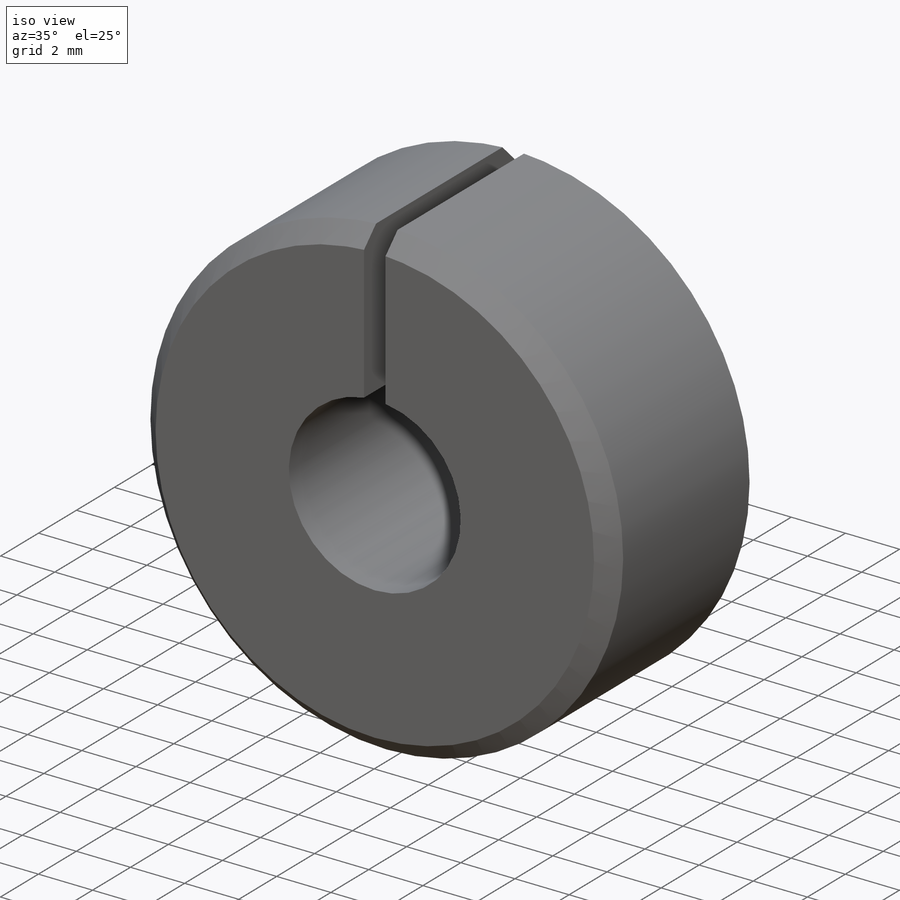
[diagram: iso view]
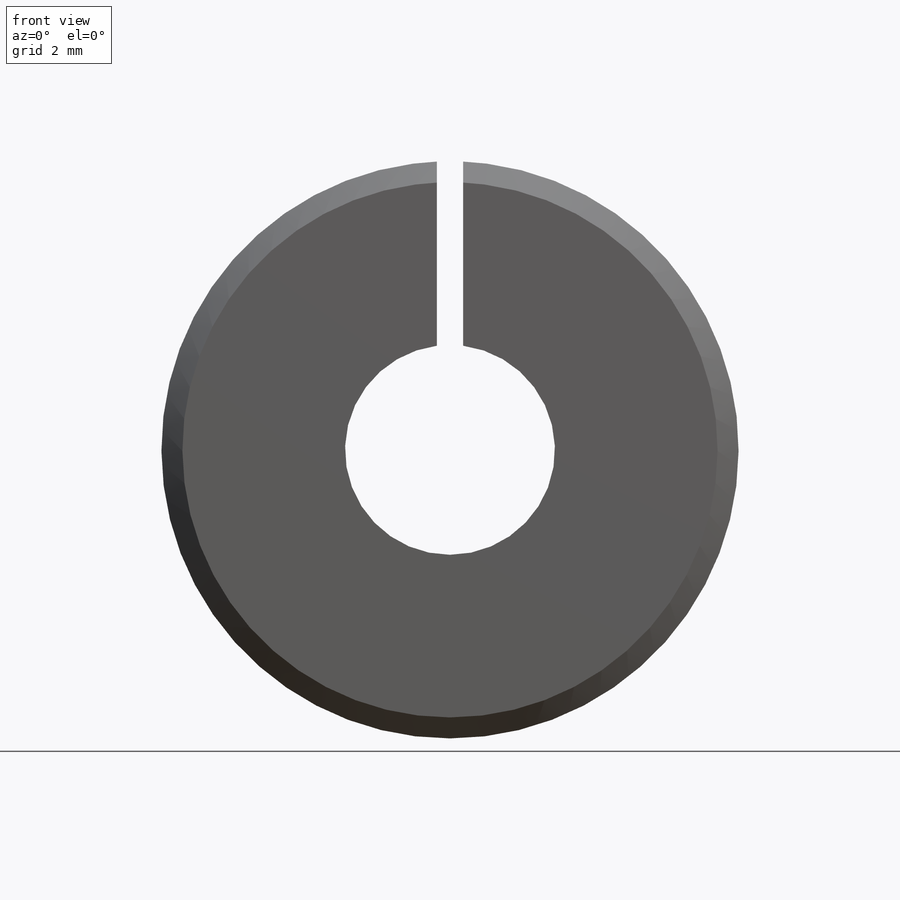
[diagram: front view]
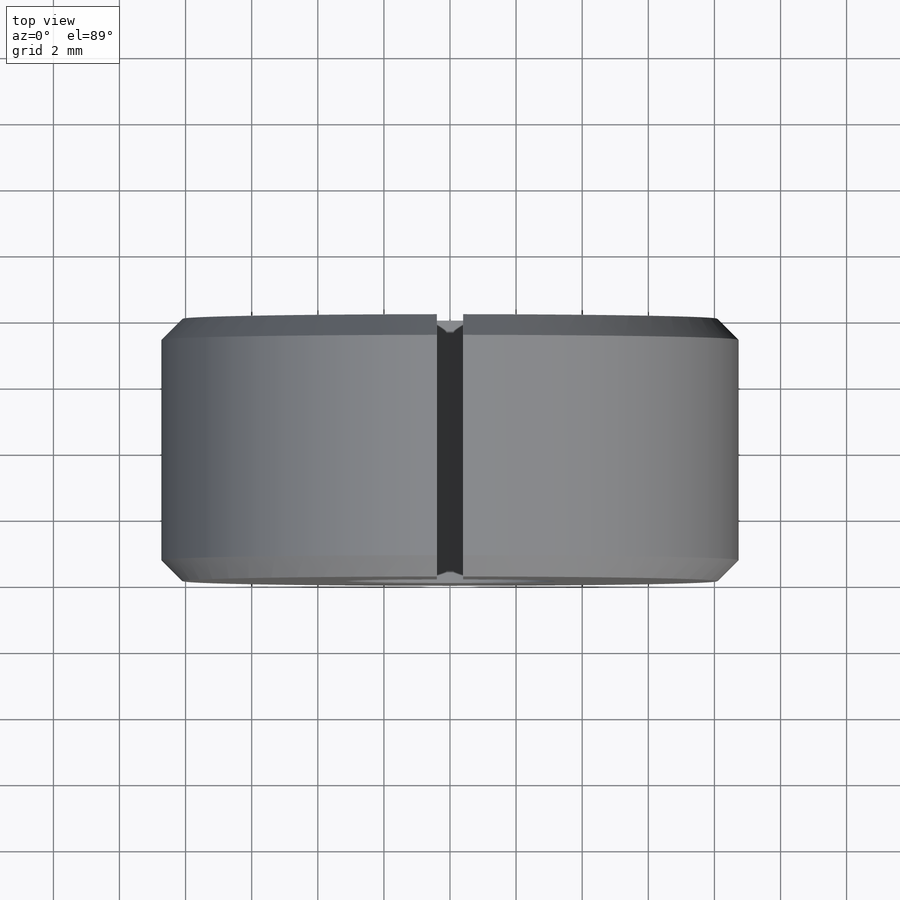
[diagram: top view]
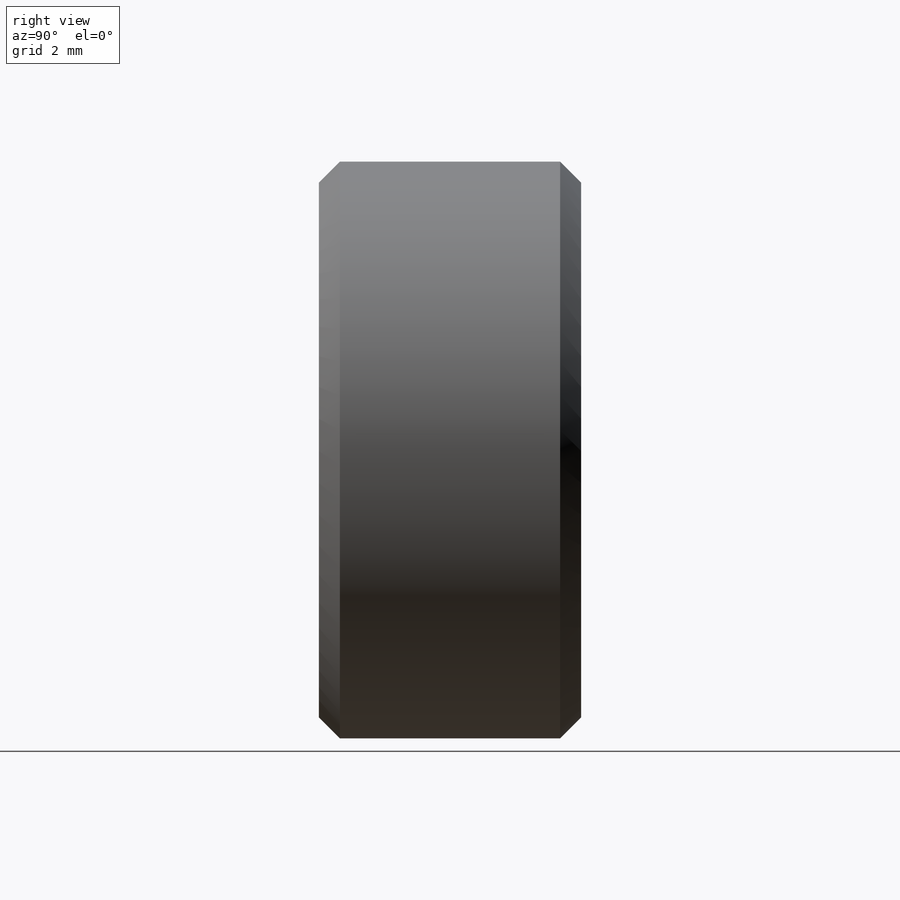
[diagram: right view]
SOLIDWORKS PART (.sldprt)
format: sldprt  version: not decoded by parser v0  size: 449,024 bytes
history: native  units: mm
features: sketch x3, material x1, extrude x1, chamfer x1, hole x1 + 1 further entry (+12 scaffold rows collapsed)
feature tree (20):
  scaffold x12  (default folders/planes/origin — collapsed)
  material  "Material <not specified>"
  "Design Table"
  sketch  "profile"  dims[c1.D2=6.35mm c1.OD=17.4625mm c1.ID=6.35mm c2.OD=17.4625mm c2.slot_width=~0.79375mm]
  extrude  "extrusion"  Depth=7.9375mm width=7.9375mm
  chamfer  "Chamfer1"  Distance=0.635mm Angle=45deg
  hole  "mount_hole"  Diameter=2.9464mm Depth=9.525mm
  sketch  "hole_location"  dims[mount_hole_radius=5.715mm]
  sketch  "hole_shape"  dims[hole-wizard template sketch: 60 standard entries collapsed; hole parameters kept: c18.Thru Hole Depth=9.525mm]
decode coverage: 6 of 6 modeling features carry decoded parameters; 1 rows unclassified (native names shown)
note: ~ marks probable driven/reference dimensions
note: suppression state not decoded; provenance and decode notes live in map.json
